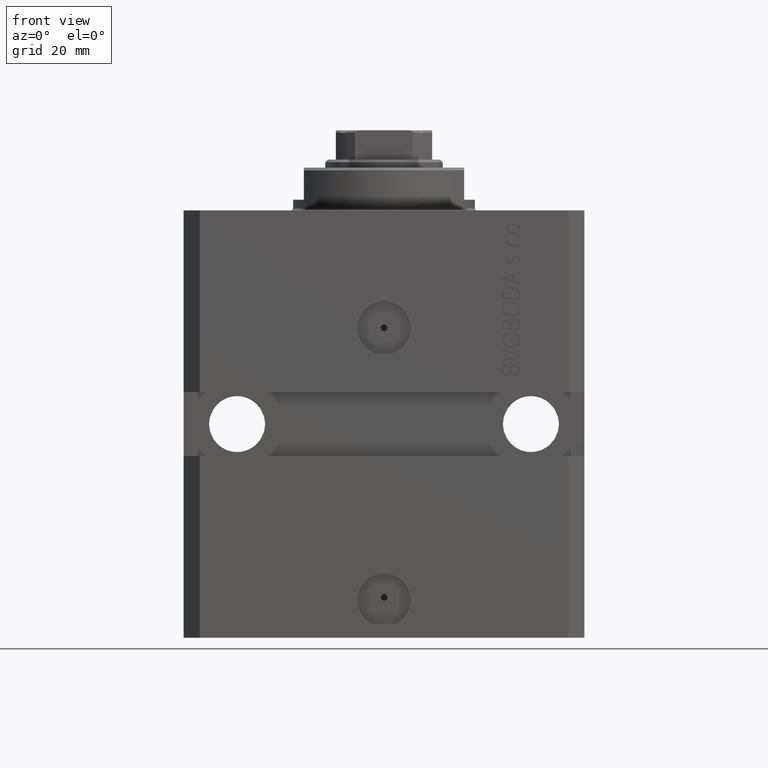
[diagram: clean part render]
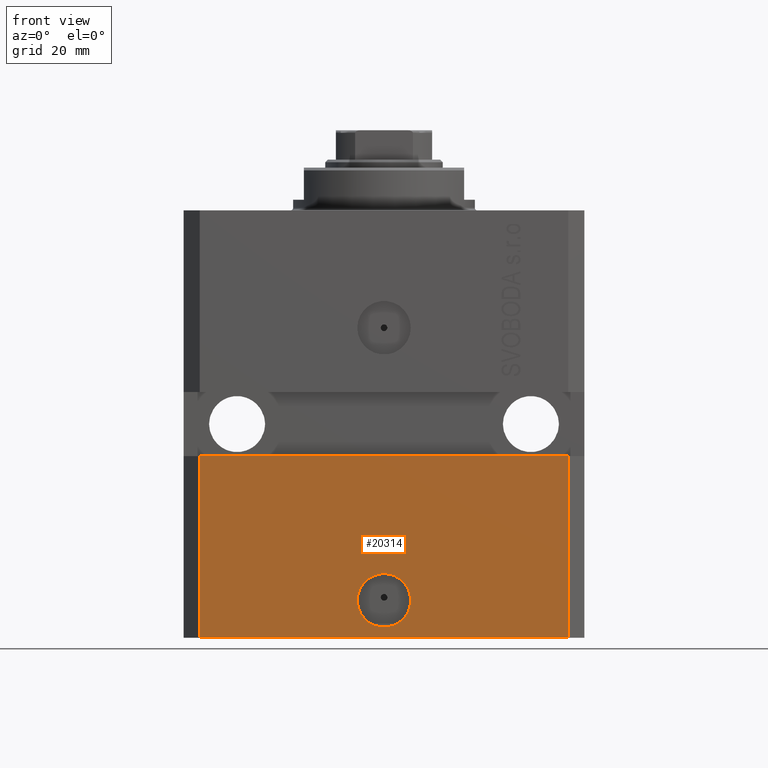
[diagram: same view with one face highlighted and labeled with its STEP entity id]
A machine part, front view. The second image highlights one B-rep face of the part: STEP entity #20314.
In plain terms, the highlighted planar face has unit normal (0, -1, 0).
Its self-contained STEP definition (entity closure, byte-faithful):
#193 = EDGE_CURVE ( 'NONE', #878, #23224, #21285, .T. ) ;
#878 = VERTEX_POINT ( 'NONE', #39167 ) ;
#1163 = EDGE_CURVE ( 'NONE', #6923, #33439, #21093, .T. ) ;
#1507 = CARTESIAN_POINT ( 'NONE',  ( 34.49999999999999289, -27.49999999999999645, -80.00000000000000000 ) ) ;
#1762 = DIRECTION ( 'NONE',  ( 1.176083712526788232E-16, -1.000000000000000000, 0.000000000000000000 ) ) ;
#3021 = AXIS2_PLACEMENT_3D ( 'NONE', #8877, #1762, #19755 ) ;
#5072 = ORIENTED_EDGE ( 'NONE', *, *, #193, .F. ) ;
#6541 = ORIENTED_EDGE ( 'NONE', *, *, #39172, .F. ) ;
#6923 = VERTEX_POINT ( 'NONE', #31915 ) ;
#7802 = CARTESIAN_POINT ( 'NONE',  ( 34.49999999999999289, -27.49999999999999289, -46.00000000000000000 ) ) ;
#7852 = CARTESIAN_POINT ( 'NONE',  ( 0.000000000000000000, -27.49999999999999645, -73.00000000000000000 ) ) ;
#8877 = CARTESIAN_POINT ( 'NONE',  ( 0.000000000000000000, -27.49999999999999645, -73.00000000000000000 ) ) ;
#9797 = EDGE_LOOP ( 'NONE', ( #12218, #6541, #19611, #28618 ) ) ;
#11324 = CIRCLE ( 'NONE', #3021, 5.000000000000006217 ) ;
#12218 = ORIENTED_EDGE ( 'NONE', *, *, #1163, .F. ) ;
#13080 = VERTEX_POINT ( 'NONE', #31302 ) ;
#13287 = EDGE_CURVE ( 'NONE', #37750, #13080, #19176, .T. ) ;
#13661 = FACE_OUTER_BOUND ( 'NONE', #9797, .T. ) ;
#15995 = VECTOR ( 'NONE', #21325, 1000.000000000000000 ) ;
#17498 = EDGE_CURVE ( 'NONE', #13080, #33439, #44632, .T. ) ;
#19176 = LINE ( 'NONE', #30078, #43509 ) ;
#19611 = ORIENTED_EDGE ( 'NONE', *, *, #13287, .T. ) ;
#19755 = DIRECTION ( 'NONE',  ( 1.000000000000000000, 0.000000000000000000, 0.000000000000000000 ) ) ;
#20314 = ADVANCED_FACE ( 'NONE', ( #25503, #13661 ), #21950, .T. ) ;
#20506 = AXIS2_PLACEMENT_3D ( 'NONE', #7852, #33907, #22301 ) ;
#21093 = LINE ( 'NONE', #24879, #15995 ) ;
#21285 = CIRCLE ( 'NONE', #20506, 5.000000000000006217 ) ;
#21324 = CARTESIAN_POINT ( 'NONE',  ( -5.000000000000006217, -27.49999999999999645, -73.00000000000000000 ) ) ;
#21325 = DIRECTION ( 'NONE',  ( 1.000000000000000000, 9.251858538542972814E-17, 0.000000000000000000 ) ) ;
#21950 = PLANE ( 'NONE',  #44534 ) ;
#22301 = DIRECTION ( 'NONE',  ( 1.000000000000000000, 0.000000000000000000, 0.000000000000000000 ) ) ;
#22537 = EDGE_LOOP ( 'NONE', ( #5072, #42034 ) ) ;
#23224 = VERTEX_POINT ( 'NONE', #21324 ) ;
#23983 = EDGE_CURVE ( 'NONE', #23224, #878, #11324, .T. ) ;
#24644 = VECTOR ( 'NONE', #29259, 1000.000000000000000 ) ;
#24779 = CARTESIAN_POINT ( 'NONE',  ( -34.49999999999998579, -27.49999999999999645, -80.00000000000000000 ) ) ;
#24879 = CARTESIAN_POINT ( 'NONE',  ( -37.50000000000000000, -27.50000000000000000, -46.00000000000000000 ) ) ;
#25499 = VECTOR ( 'NONE', #41315, 1000.000000000000000 ) ;
#25503 = FACE_BOUND ( 'NONE', #22537, .T. ) ;
#26361 = CARTESIAN_POINT ( 'NONE',  ( -34.49999999999998579, -27.49999999999999645, -80.00000000000000000 ) ) ;
#28130 = DIRECTION ( 'NONE',  ( 0.000000000000000000, -0.000000000000000000, -1.000000000000000000 ) ) ;
#28618 = ORIENTED_EDGE ( 'NONE', *, *, #17498, .T. ) ;
#29259 = DIRECTION ( 'NONE',  ( 0.000000000000000000, 0.000000000000000000, 1.000000000000000000 ) ) ;
#30078 = CARTESIAN_POINT ( 'NONE',  ( -34.49999999999998579, -27.49999999999999645, -80.00000000000000000 ) ) ;
#31302 = CARTESIAN_POINT ( 'NONE',  ( 34.49999999999999289, -27.49999999999999645, -80.00000000000000000 ) ) ;
#31694 = DIRECTION ( 'NONE',  ( 0.000000000000000000, -1.000000000000000000, 0.000000000000000000 ) ) ;
#31915 = CARTESIAN_POINT ( 'NONE',  ( -34.49999999999998579, -27.50000000000000000, -46.00000000000000000 ) ) ;
#33439 = VERTEX_POINT ( 'NONE', #7802 ) ;
#33907 = DIRECTION ( 'NONE',  ( 1.176083712526788232E-16, -1.000000000000000000, 0.000000000000000000 ) ) ;
#37750 = VERTEX_POINT ( 'NONE', #26361 ) ;
#39167 = CARTESIAN_POINT ( 'NONE',  ( 5.000000000000006217, -27.49999999999999645, -73.00000000000000000 ) ) ;
#39172 = EDGE_CURVE ( 'NONE', #37750, #6923, #43723, .T. ) ;
#41315 = DIRECTION ( 'NONE',  ( 0.000000000000000000, 0.000000000000000000, 1.000000000000000000 ) ) ;
#41686 = DIRECTION ( 'NONE',  ( 1.000000000000000000, 0.000000000000000000, 0.000000000000000000 ) ) ;
#42034 = ORIENTED_EDGE ( 'NONE', *, *, #23983, .F. ) ;
#43509 = VECTOR ( 'NONE', #41686, 1000.000000000000000 ) ;
#43723 = LINE ( 'NONE', #24779, #24644 ) ;
#44534 = AXIS2_PLACEMENT_3D ( 'NONE', #46153, #31694, #28130 ) ;
#44632 = LINE ( 'NONE', #1507, #25499 ) ;
#46153 = CARTESIAN_POINT ( 'NONE',  ( -34.49999999999998579, -27.49999999999999645, -80.00000000000000000 ) ) ;